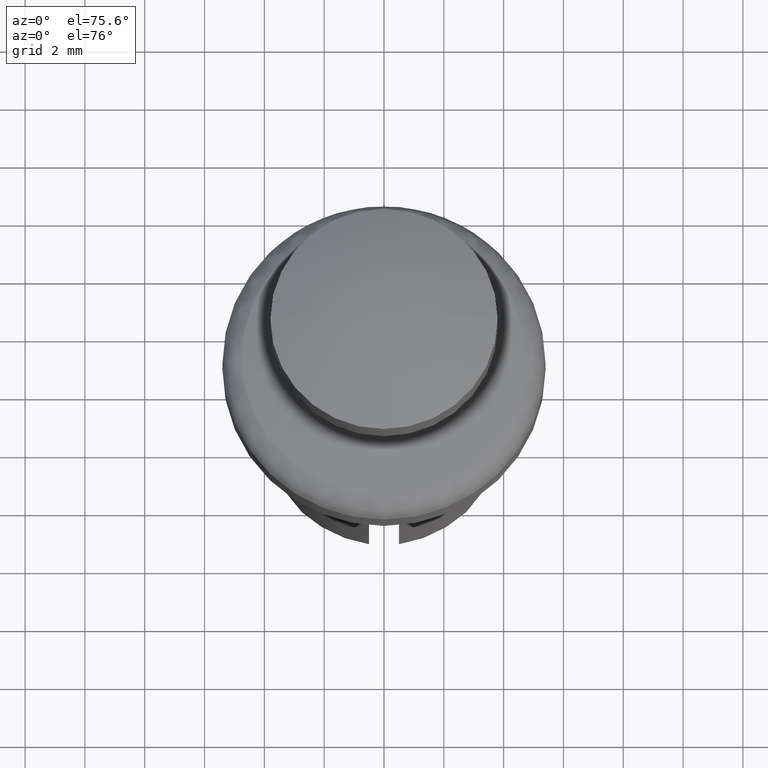
[diagram: clean part render]
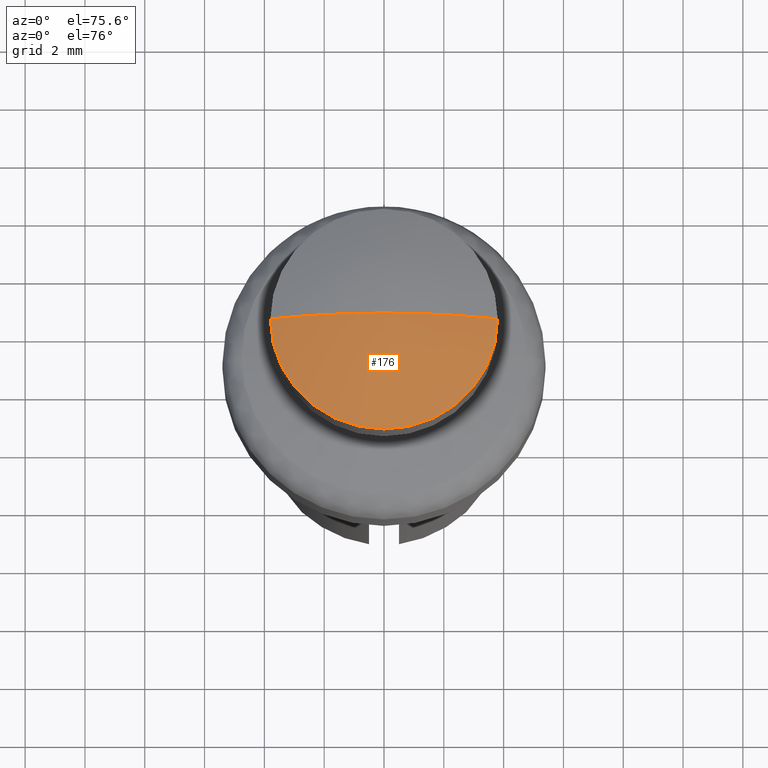
[diagram: same view with one face highlighted and labeled with its STEP entity id]
A machine part, auxiliary view. The second image highlights one B-rep face of the part: STEP entity #176.
In plain terms, the highlighted spherical surface has radius 9.425 mm.
Its self-contained STEP definition (entity closure, byte-faithful):
#176=ADVANCED_FACE('',(#838),#837,.T.);
#837=SPHERICAL_SURFACE('',#1450,9.42500000000E+00);
#838=FACE_OUTER_BOUND('',#1451,.T.);
#1447=CARTESIAN_POINT('',(0.00000000000E+00,0.00000000000E+00,-6.62500000000E+00));
#1448=DIRECTION('',(0.00000000000E+00,0.00000000000E+00,-1.00000000000E+00));
#1449=DIRECTION('',(1.00000000000E+00,4.04453249759E-21,0.00000000000E+00));
#1450=AXIS2_PLACEMENT_3D('',#1447,#1448,#1449);
#1451=EDGE_LOOP('',(#1887,#1888,#1889));
#1887=ORIENTED_EDGE('',*,*,#2118,.T.);
#1888=ORIENTED_EDGE('',*,*,#2117,.F.);
#1889=ORIENTED_EDGE('',*,*,#2119,.F.);
#2117=EDGE_CURVE('',#3263,#3262,#3282,.T.);
#2118=EDGE_CURVE('',#3288,#3262,#3289,.T.);
#2119=EDGE_CURVE('',#3288,#3263,#3295,.T.);
#3262=VERTEX_POINT('',#4181);
#3263=VERTEX_POINT('',#4182);
#3282=CIRCLE('',#4194,3.79999757951E+00);
#3288=VERTEX_POINT('',#4195);
#3289=(BOUNDED_CURVE() B_SPLINE_CURVE(2,(#4196,#4197,#4198),.UNSPECIFIED.,.F.,.F.) B_SPLINE_CURVE_WITH_KNOTS((3,3),(0.00000000000E+00,9.99999235073E-01),.UNSPECIFIED.) CURVE() GEOMETRIC_REPRESENTATION_ITEM() RATIONAL_B_SPLINE_CURVE((1.00000000000E+00,9.78549781061E-01,1.00000000000E+00)) REPRESENTATION_ITEM('') );
#3295=(BOUNDED_CURVE() B_SPLINE_CURVE(2,(#4199,#4200,#4201),.UNSPECIFIED.,.F.,.F.) B_SPLINE_CURVE_WITH_KNOTS((3,3),(0.00000000000E+00,1.00000000000E+00),.UNSPECIFIED.) CURVE() GEOMETRIC_REPRESENTATION_ITEM() RATIONAL_B_SPLINE_CURVE((7.50000000000E-01,7.33912335796E-01,7.50000000000E-01)) REPRESENTATION_ITEM('') );
#4181=CARTESIAN_POINT('',(-3.79999757951E+00,0.00000000000E+00,2.00000106642E+00));
#4182=CARTESIAN_POINT('',(3.79999757951E+00,2.96059473233E-16,2.00000106642E+00));
#4191=CARTESIAN_POINT('',(0.00000000000E+00,0.00000000000E+00,2.00000106642E+00));
#4192=DIRECTION('',(-0.00000000000E+00,0.00000000000E+00,-1.00000000000E+00));
#4193=DIRECTION('',(-1.00000000000E+00,-1.22460635382E-16,0.00000000000E+00));
#4194=AXIS2_PLACEMENT_3D('',#4191,#4192,#4193);
#4195=CARTESIAN_POINT('',(-5.77095744239E-16,7.06715115159E-32,2.80000000000E+00));
#4196=CARTESIAN_POINT('',(-5.77095744239E-16,7.06715115159E-32,2.80000000000E+00));
#4197=CARTESIAN_POINT('',(-1.98421071388E+00,2.42987704754E-16,2.80000000000E+00));
#4198=CARTESIAN_POINT('',(-3.80000032872E+00,4.65350454707E-16,1.99999985517E+00));
#4199=CARTESIAN_POINT('',(5.77095744239E-16,-6.57384087684E-32,2.80000000000E+00));
#4200=CARTESIAN_POINT('',(1.98421071388E+00,-4.53823830371E-16,2.80000000000E+00));
#4201=CARTESIAN_POINT('',(3.80000032872E+00,-5.92118946467E-16,1.99999985517E+00));